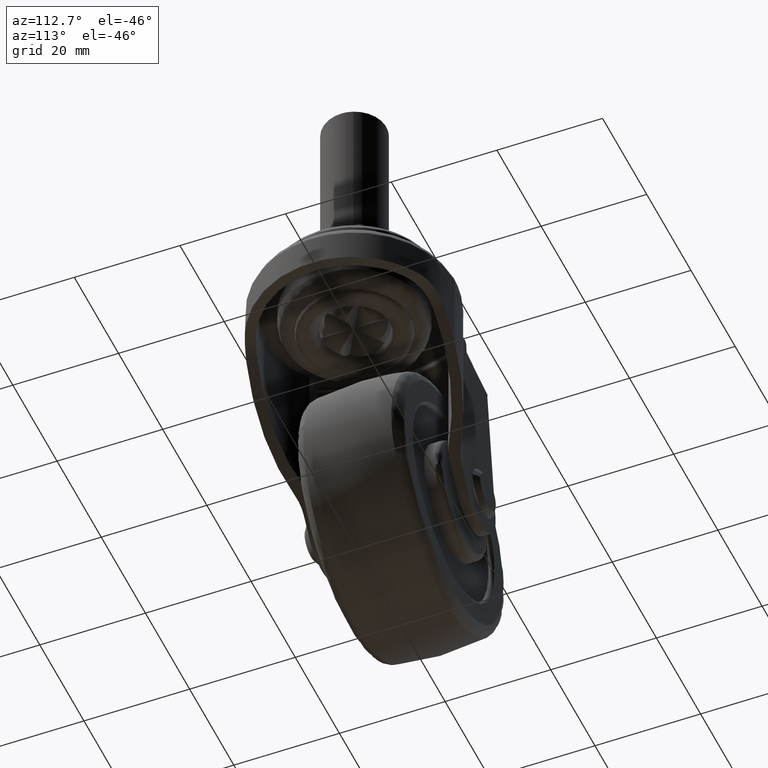
[diagram: clean part render]
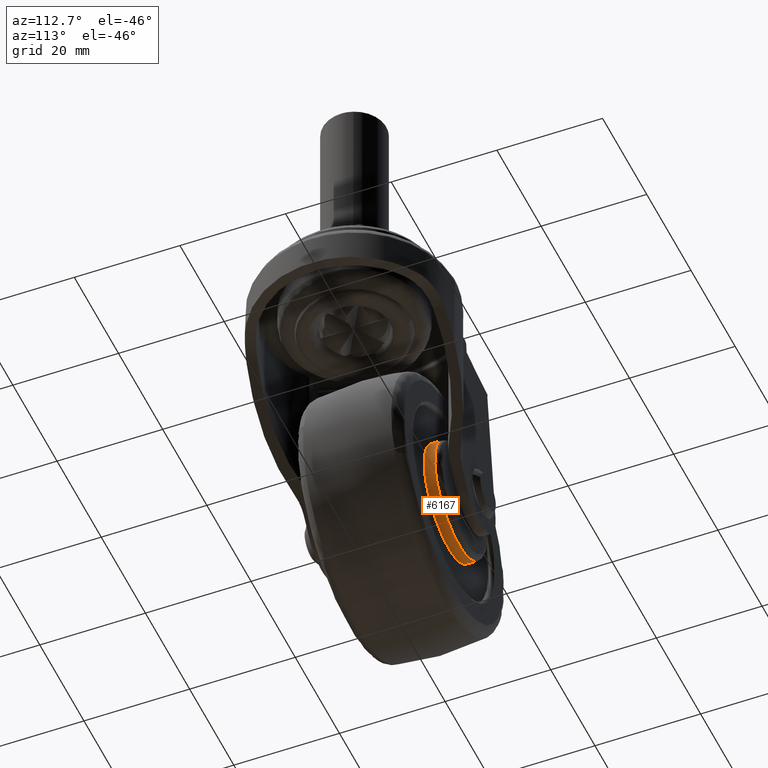
[diagram: same view with one face highlighted and labeled with its STEP entity id]
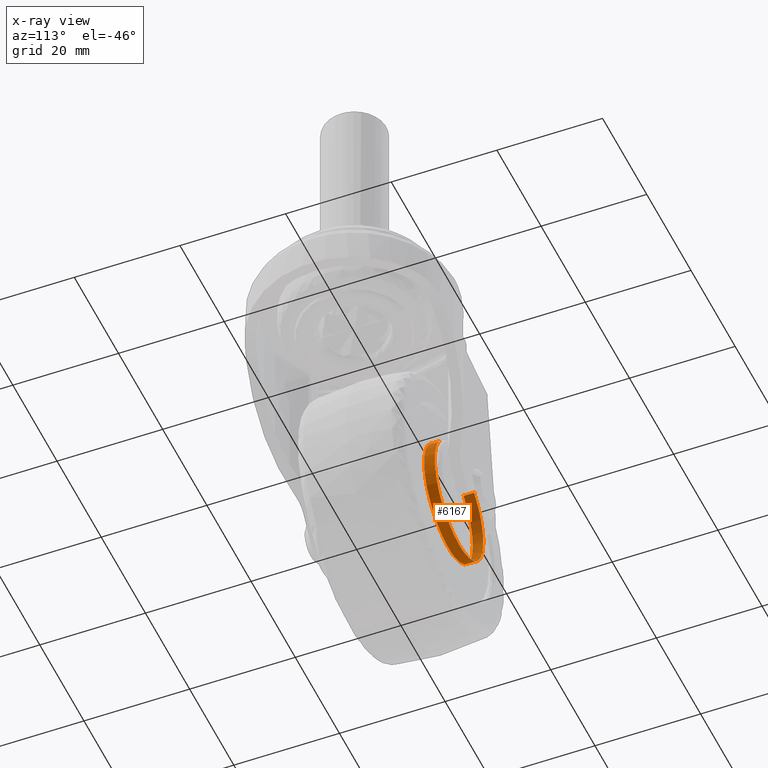
[diagram: x-ray of the same camera — body ghosted, the highlighted face saturated]
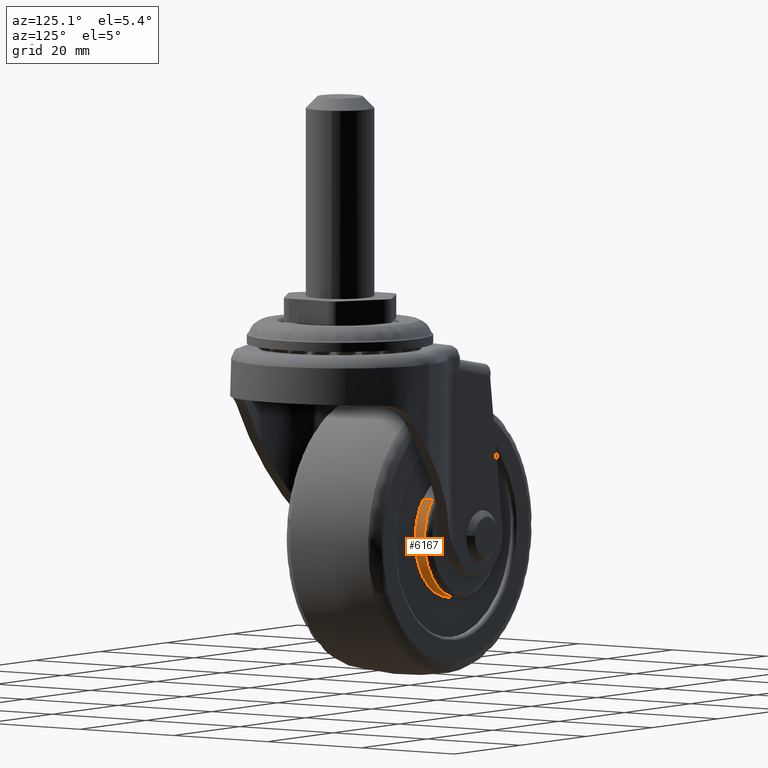
[diagram: same view with one face highlighted and labeled with its STEP entity id]
A machine part, auxiliary view. The second image highlights one B-rep face of the part: STEP entity #6167.
The next image is the same camera in x-ray: the body ghosted, the highlighted face saturated — about 19% of this face is hidden behind the body in this view.
A second angle (auxiliary view) of the same face is appended — the face is thin or edge-on in the first view.
In plain terms, the highlighted face is a freeform B-spline surface patch.
Its self-contained STEP definition (entity closure, byte-faithful):
#6033=CARTESIAN_POINT('',(-6.847661003013814,11.049999464679781,8.608689725376552));
#6034=CARTESIAN_POINT('',(-15.456350728390364,11.049999464679775,1.761028722362737));
#6035=CARTESIAN_POINT('',(-8.608689725376550,11.049999464679781,-6.847661003013813));
#6036=CARTESIAN_POINT('',(-1.761028722362737,11.049999464679775,-15.456350728390364));
#6037=CARTESIAN_POINT('',(6.847661003013814,11.049999464679781,-8.608689725376548));
#6038=CARTESIAN_POINT('',(15.456350728390364,11.049999464679775,-1.761028722362735));
#6039=CARTESIAN_POINT('',(8.608689725376550,11.049999464679781,6.847661003013815));
#6040=CARTESIAN_POINT('',(-6.847661003013814,8.948750013383004,8.608689725376552));
#6041=CARTESIAN_POINT('',(-15.456350728390364,8.948750013383004,1.761028722362737));
#6042=CARTESIAN_POINT('',(-8.608689725376550,8.948750013383004,-6.847661003013813));
#6043=CARTESIAN_POINT('',(-1.761028722362737,8.948750013383004,-15.456350728390364));
#6044=CARTESIAN_POINT('',(6.847661003013814,8.948750013383004,-8.608689725376548));
#6045=CARTESIAN_POINT('',(15.456350728390364,8.948750013383004,-1.761028722362735));
#6046=CARTESIAN_POINT('',(8.608689725376550,8.948750013383004,6.847661003013815));
#6054=(BOUNDED_SURFACE()B_SPLINE_SURFACE(2,1,((#6033,#6040),(#6034,#6041),(#6035,#6042),(#6036,#6043),(#6037,#6044),(#6038,#6045),(#6039,#6046)),.UNSPECIFIED.,.F.,.F.,.U.)B_SPLINE_SURFACE_WITH_KNOTS((3,2,2,3),(2,2),(0.0,18.225396744416180,36.450793488832360,54.676190233248541),(0.0,2.101249451296772),.UNSPECIFIED.)GEOMETRIC_REPRESENTATION_ITEM()RATIONAL_B_SPLINE_SURFACE(((1.0,1.0),(0.707106781186548,0.707106781186548),(1.0,1.0),(0.707106781186548,0.707106781186548),(1.0,1.0),(0.707106781186548,0.707106781186548),(1.0,1.0)))REPRESENTATION_ITEM('')SURFACE());
#6055=CARTESIAN_POINT('',(-6.847659149445075,10.999999476691711,8.608691199770959));
#6056=VERTEX_POINT('',#6055);
#6057=CARTESIAN_POINT('',(-10.999999999999860,10.999999477736370,2.569270E-014));
#6058=VERTEX_POINT('',#6057);
#6059=CARTESIAN_POINT('',(-6.847659149445076,10.999999476691709,8.608691199770959));
#6060=CARTESIAN_POINT('',(-10.999999999999837,10.999999477092370,5.305771608733662));
#6061=CARTESIAN_POINT('',(-10.999999999999861,10.999999477736372,2.569270E-014));
#6069=(BOUNDED_CURVE()B_SPLINE_CURVE(2,(#6059,#6060,#6061),.UNSPECIFIED.,.F.,.U.)B_SPLINE_CURVE_WITH_KNOTS((3,3),(0.607863844798368,0.749999999999999),.UNSPECIFIED.)CURVE()GEOMETRIC_REPRESENTATION_ITEM()RATIONAL_B_SPLINE_CURVE((0.856305629113611,0.833477135972903,0.999999999999998))REPRESENTATION_ITEM(''));
#6070=EDGE_CURVE('',#6056,#6058,#6069,.T.);
#6071=ORIENTED_EDGE('',*,*,#6070,.T.);
#6072=CARTESIAN_POINT('',(0.0,10.999999476401220,-10.999999999999860));
#6073=VERTEX_POINT('',#6072);
#6074=CARTESIAN_POINT('',(-10.999999999999858,10.999999477736369,2.569270E-014));
#6075=CARTESIAN_POINT('',(-10.999999999999909,10.999999476401220,-10.999999999999860));
#6076=CARTESIAN_POINT('',(0.0,10.999999476401220,-10.999999999999860));
#6084=(BOUNDED_CURVE()B_SPLINE_CURVE(2,(#6074,#6075,#6076),.UNSPECIFIED.,.F.,.U.)B_SPLINE_CURVE_WITH_KNOTS((3,3),(0.749999999999999,1.0),.UNSPECIFIED.)CURVE()GEOMETRIC_REPRESENTATION_ITEM()RATIONAL_B_SPLINE_CURVE((1.000000000000002,0.707106781186547,1.0))REPRESENTATION_ITEM(''));
#6085=EDGE_CURVE('',#6058,#6073,#6084,.T.);
#6086=ORIENTED_EDGE('',*,*,#6085,.T.);
#6087=CARTESIAN_POINT('',(10.926428026625659,10.999999477719300,-1.270106522684673));
#6088=VERTEX_POINT('',#6087);
#6089=CARTESIAN_POINT('',(0.0,10.999999476401220,-10.999999999999860));
#6090=CARTESIAN_POINT('',(9.795408708939442,10.999999476401220,-10.999999999999860));
#6091=CARTESIAN_POINT('',(10.926428026625659,10.999999477719291,-1.270106522684672));
#6099=(BOUNDED_CURVE()B_SPLINE_CURVE(2,(#6089,#6090,#6091),.UNSPECIFIED.,.F.,.U.)B_SPLINE_CURVE_WITH_KNOTS((3,3),(0.0,0.229999999997310),.UNSPECIFIED.)CURVE()GEOMETRIC_REPRESENTATION_ITEM()RATIONAL_B_SPLINE_CURVE((1.0,0.730538238694775,0.956886118185365))REPRESENTATION_ITEM(''));
#6100=EDGE_CURVE('',#6073,#6088,#6099,.T.);
#6101=ORIENTED_EDGE('',*,*,#6100,.T.);
#6102=CARTESIAN_POINT('',(8.608691228479920,10.999999476401840,6.847659113352934));
#6103=VERTEX_POINT('',#6102);
#6104=CARTESIAN_POINT('',(10.926428026625659,10.999999477719291,-1.270106522684672));
#6105=CARTESIAN_POINT('',(10.999999999999860,10.999999476401221,-0.637184120164393));
#6106=CARTESIAN_POINT('',(10.999999999999860,10.999999476401220,1.316451E-015));
#6107=CARTESIAN_POINT('',(10.999999999999861,10.999999476401221,3.841370613122855));
#6108=CARTESIAN_POINT('',(8.608691228479922,10.999999476401836,6.847659113352934));
#6116=(BOUNDED_CURVE()B_SPLINE_CURVE(2,(#6104,#6105,#6106,#6107,#6108),.UNSPECIFIED.,.F.,.U.)B_SPLINE_CURVE_WITH_KNOTS((3,2,3),(0.229999999997310,0.250000000000000,0.357863844163726),.UNSPECIFIED.)CURVE()GEOMETRIC_REPRESENTATION_ITEM()RATIONAL_B_SPLINE_CURVE((0.956886118185365,0.976568542491772,1.0,0.873629645957175,0.856305629317471))REPRESENTATION_ITEM(''));
#6117=EDGE_CURVE('',#6088,#6103,#6116,.T.);
#6118=ORIENTED_EDGE('',*,*,#6117,.T.);
#6119=CARTESIAN_POINT('',(8.608693535456990,9.0,6.847656213080759));
#6120=VERTEX_POINT('',#6119);
#6121=CARTESIAN_POINT('',(8.608691228479920,10.999999476401840,6.847659113352934));
#6122=CARTESIAN_POINT('',(8.608693535456990,9.0,6.847656213080759));
#6123=QUASI_UNIFORM_CURVE('',1,(#6121,#6122),.UNSPECIFIED.,.F.,.U.);
#6124=EDGE_CURVE('',#6103,#6120,#6123,.T.);
#6125=ORIENTED_EDGE('',*,*,#6124,.T.);
#6126=CARTESIAN_POINT('',(0.0,9.0,-11.0));
#6127=VERTEX_POINT('',#6126);
#6128=CARTESIAN_POINT('',(0.0,9.0,-11.0));
#6129=CARTESIAN_POINT('',(11.0,9.000000000000002,-10.999999999999998));
#6130=CARTESIAN_POINT('',(11.0,9.0,1.316451E-015));
#6131=CARTESIAN_POINT('',(11.0,9.0,3.841368534200995));
#6132=CARTESIAN_POINT('',(8.608693535456990,9.0,6.847656213080759));
#6140=(BOUNDED_CURVE()B_SPLINE_CURVE(2,(#6128,#6129,#6130,#6131,#6132),.UNSPECIFIED.,.F.,.U.)B_SPLINE_CURVE_WITH_KNOTS((3,2,3),(0.0,0.250000000000000,0.357863793165478),.UNSPECIFIED.)CURVE()GEOMETRIC_REPRESENTATION_ITEM()RATIONAL_B_SPLINE_CURVE((1.0,0.707106781186548,1.0,0.873629705705339,0.856305645699157))REPRESENTATION_ITEM(''));
#6141=EDGE_CURVE('',#6127,#6120,#6140,.T.);
#6142=ORIENTED_EDGE('',*,*,#6141,.F.);
#6143=CARTESIAN_POINT('',(-6.847659171783644,9.0,8.608691182002167));
#6144=VERTEX_POINT('',#6143);
#6145=CARTESIAN_POINT('',(-6.847659171783644,9.0,8.608691182002167));
#6146=CARTESIAN_POINT('',(-11.000000000000002,9.0,5.305771591141473));
#6147=CARTESIAN_POINT('',(-11.0,9.0,1.316451E-015));
#6148=CARTESIAN_POINT('',(-11.0,9.000000000000002,-10.999999999999998));
#6149=CARTESIAN_POINT('',(0.0,9.0,-11.0));
#6157=(BOUNDED_CURVE()B_SPLINE_CURVE(2,(#6145,#6146,#6147,#6148,#6149),.UNSPECIFIED.,.F.,.U.)B_SPLINE_CURVE_WITH_KNOTS((3,2,3),(0.607863845191168,0.750000000000000,1.0),.UNSPECIFIED.)CURVE()GEOMETRIC_REPRESENTATION_ITEM()RATIONAL_B_SPLINE_CURVE((0.856305628987436,0.833477136433096,1.0,0.707106781186548,1.0))REPRESENTATION_ITEM(''));
#6158=EDGE_CURVE('',#6144,#6127,#6157,.T.);
#6159=ORIENTED_EDGE('',*,*,#6158,.F.);
#6160=CARTESIAN_POINT('',(-6.847659149445075,10.999999476691711,8.608691199770959));
#6161=CARTESIAN_POINT('',(-6.847659171783644,9.0,8.608691182002167));
#6162=QUASI_UNIFORM_CURVE('',1,(#6160,#6161),.UNSPECIFIED.,.F.,.U.);
#6163=EDGE_CURVE('',#6056,#6144,#6162,.T.);
#6164=ORIENTED_EDGE('',*,*,#6163,.F.);
#6165=EDGE_LOOP('',(#6071,#6086,#6101,#6118,#6125,#6142,#6159,#6164));
#6166=FACE_OUTER_BOUND('',#6165,.T.);
#6167=ADVANCED_FACE('',(#6166),#6054,.T.);